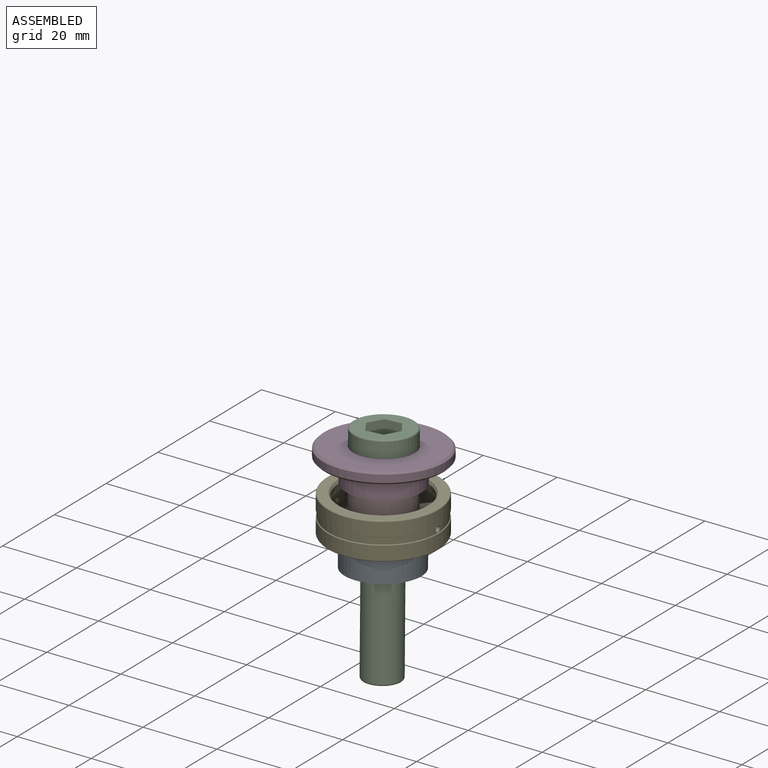
[diagram: assembled view]
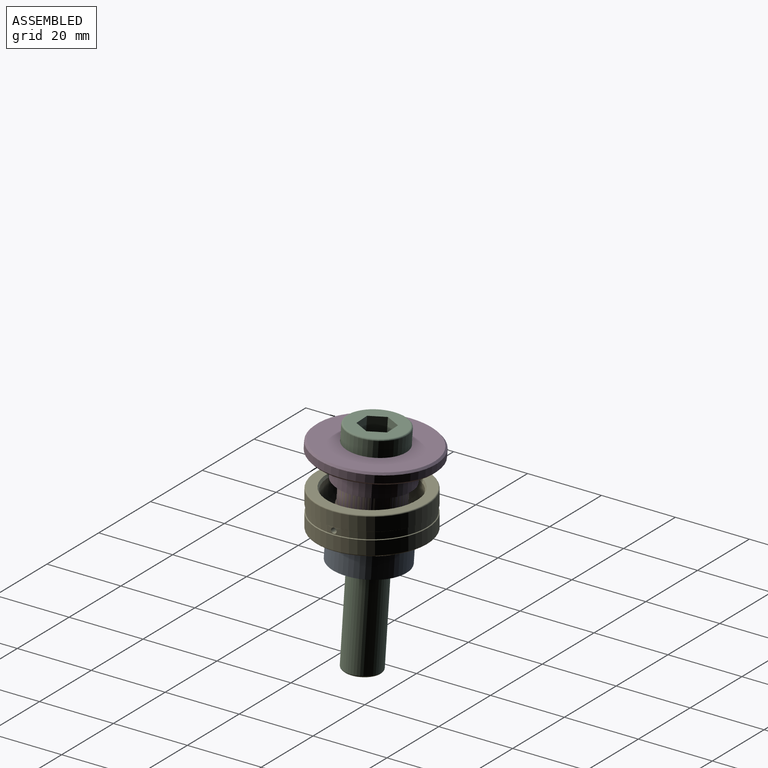
[diagram: assembled view, second angle]
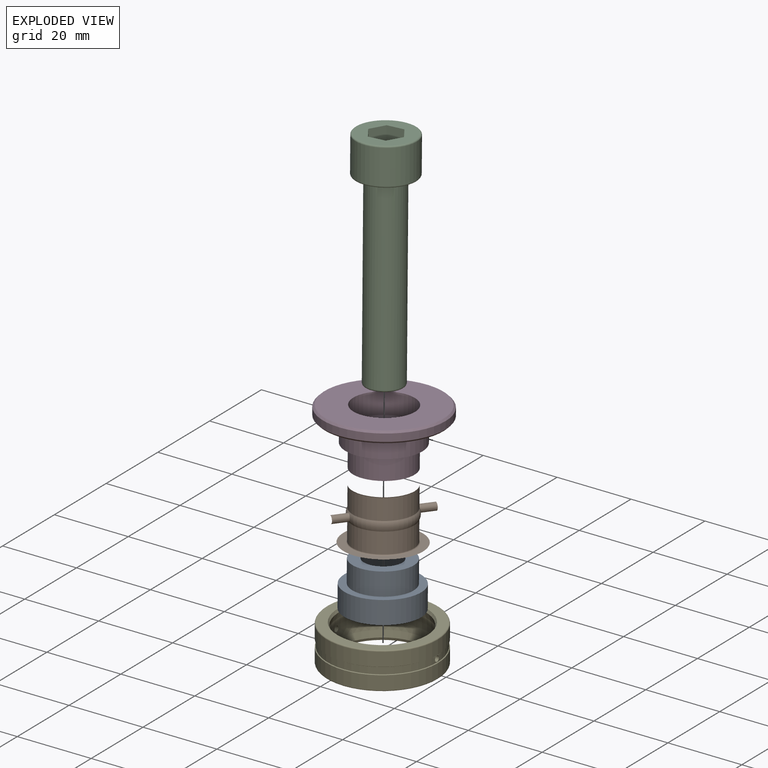
[diagram: exploded view]
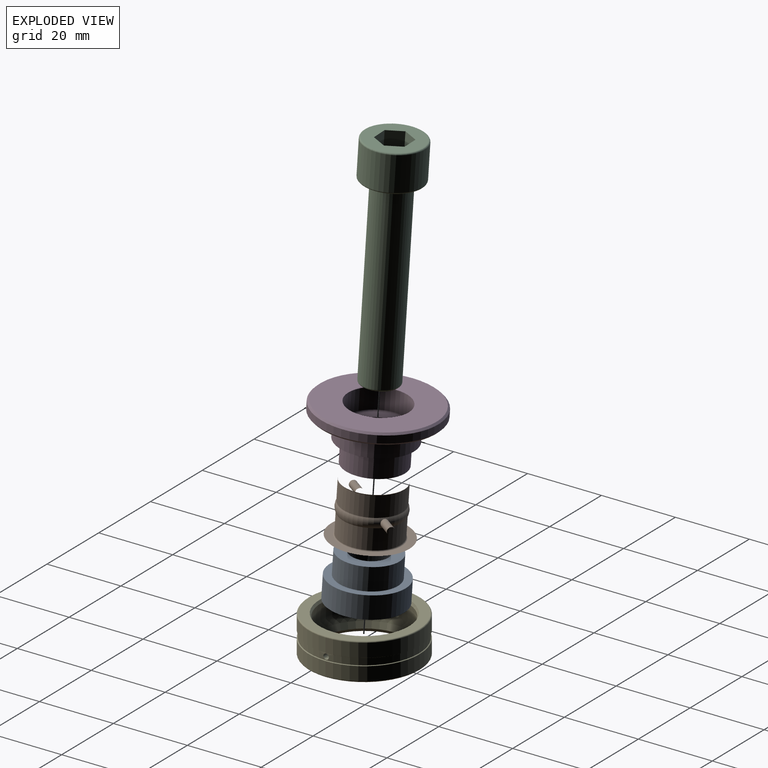
[diagram: exploded view, second angle]
ASSEMBLY  parts=5 mates=6
PART A: 6 faces, bbox 20x20x12 mm
  f0: cylinder r=10mm len=20mm, axis (0,0,-1), area 377mm2, adj f1,f5
  f1: plane 20x20mm, normal (0,0,-1), area 235.6mm2, adj f0,f2
  f2: cylinder r=5mm len=12mm, axis (0,0,-1), area 377mm2, adj f1,f3
  f3: plane 16x16mm, normal (0,0,1), area 122.5mm2, adj f2,f4
  f4: cylinder r=8mm len=16mm, axis (0,0,-1), area 301.6mm2, adj f3,f5
  f5: plane 20x20mm, normal (0,0,1), area 113.1mm2, adj f0,f4
PART B: 10 faces, bbox 25x25x25 mm
  f0: torus R=5.8mm, axis (0,0,1), area 130.4mm2, adj f1,f4,f6,f7
  f1: cylinder r=8mm len=16mm, axis (0,0,1), area 273.2mm2, adj f0,f2
  f2: torus R=8.3mm, axis (0,0,1), area 24mm2, adj f1,f9
  f3: torus R=8.3mm, axis (0,0,1), area 24mm2, adj f4,f8
  f4: cylinder r=8mm len=16mm, axis (0,0,1), area 273.2mm2, adj f0,f3
  f5: sphere r=12.5mm, area 1969.9mm2, adj f6,f7,f8,f9
  f6: cylinder r=1mm len=4.33mm, axis (1,0,0), area 26.7mm2, adj f0,f5
  f7: cylinder r=1mm len=4.33mm, axis (1,0,0), area 26.7mm2, adj f0,f5
  f8: plane 20.71x20.71mm, normal (0,0,1), area 120.5mm2, adj f3,f5
  f9: plane 20.71x20.71mm, normal (0,0,-1), area 120.5mm2, adj f2,f5
PART C: 16 faces, bbox 17.2x17.2x60 mm
  f0: plane 15.1x15.1mm, normal (0,0,1), area 123.7mm2, adj f5,f6,f7,f8,f9,f10,f12
  f1: cylinder r=7.95mm len=15.9mm, axis (0,0,1), area 459.6mm2, adj f12,f13
  f2: plane 15.1x15.1mm, normal (0,0,-1), area 84mm2, adj f13,f14
  f3: cylinder r=5mm len=49mm, axis (0,0,1), area 1539.4mm2, adj f14,f15
  f4: plane 9x9mm, normal (0,0,-1), area 63.6mm2, adj f15
  f5: plane 8x3.98mm, normal (0.86,0.51,0), area 37mm2, adj f0,f6,f10,f11
  f6: plane 8x4.62mm, normal (-0.01,1,0), area 37mm2, adj f0,f5,f7,f11
  f7: plane 8x4.02mm, normal (-0.87,0.49,0), area 37mm2, adj f0,f6,f8,f11
  f8: plane 8x3.98mm, normal (-0.86,-0.51,0), area 37mm2, adj f0,f7,f9,f11
  f9: plane 8x4.62mm, normal (0.01,-1,0), area 37mm2, adj f0,f8,f10,f11
  f10: plane 8x4.02mm, normal (0.87,-0.49,0), area 37mm2, adj f0,f5,f9,f11
  f11: plane 9.24x8.04mm, normal (0,0,1), area 55.4mm2, adj f5,f6,f7,f8,f9,f10
  f12: torus R=7.55mm, axis (0,0,1), area 30.8mm2, adj f0,f1
  f13: torus R=7.55mm, axis (0,0,-1), area 30.8mm2, adj f1,f2
  f14: torus R=5.5mm, axis (0,0,-1), area 25.6mm2, adj f2,f3
  f15: torus R=4.5mm, axis (0,0,-1), area 23.8mm2, adj f3,f4
PART D: 15 faces, bbox 31.8x31.8x15 mm
  f0: cylinder r=10mm len=20mm, axis (0,0,-1), area 345.6mm2, adj f1,f12
  f1: plane 20x20mm, normal (0,0,-1), area 87.2mm2, adj f0,f11
  f2: cylinder r=8mm len=16mm, axis (0,0,-1), area 276.5mm2, adj f3,f11
  f3: plane 16x16mm, normal (0,0,-1), area 122.5mm2, adj f2,f4
  f4: cylinder r=5mm len=10mm, axis (0,0,-1), area 282.7mm2, adj f3,f5
  f5: plane 15x15mm, normal (0,0,1), area 98.2mm2, adj f4,f6
  f6: torus R=7.5mm, axis (0,0,-1), area 38.6mm2, adj f5,f7
  f7: cylinder r=8mm len=16mm, axis (0,0,-1), area 276.5mm2, adj f6,f8
  f8: plane 30.85x30.85mm, normal (0,0,1), area 546.4mm2, adj f7,f13
  f9: cylinder r=15.92mm len=31.85mm, axis (0,0,-1), area 200.1mm2, adj f13,f14
  f10: plane 30.85x30.85mm, normal (0,0,-1), area 401.1mm2, adj f12,f14
  f11: cone r=8mm half-angle=45deg, axis (0,0,1), area 36.7mm2, adj f1,f2
  f12: cone r=10mm half-angle=45deg, axis (0,0,1), area 45.5mm2, adj f0,f10
  f13: cone r=15.92mm half-angle=45deg, axis (0,0,-1), area 69.6mm2, adj f8,f9
  f14: cone r=15.42mm half-angle=45deg, axis (0,0,1), area 69.6mm2, adj f9,f10
PART E: 14 faces, bbox 32.5x32.5x10 mm
  f0: cone r=11.93mm half-angle=25deg, axis (0,0,1), area 62mm2, adj f8,f13
  f1: torus R=14.7mm, axis (0,0,1), area 44.1mm2, adj f2,f13
  f2: cylinder r=15mm len=30mm, axis (0,0,1), area 346.7mm2, adj f1,f3
  f3: cone r=14.89mm half-angle=60deg, axis (0,0,1), area 22.7mm2, adj f2,f9
  f4: cone r=14.89mm half-angle=60deg, axis (0,0,-1), area 22.7mm2, adj f5,f9
  f5: cylinder r=15mm len=30mm, axis (0,0,1), area 346.7mm2, adj f4,f6
  f6: torus R=14.7mm, axis (0,0,1), area 44.1mm2, adj f5,f12
  f7: cone r=11.93mm half-angle=25deg, axis (0,0,-1), area 62mm2, adj f8,f12
  f8: revolved ~24.9x24.9mm, area 1325.7mm2, adj f0,f7,f10,f11
  f9: cylinder r=14.79mm len=29.58mm, axis (0,0,1), area 163.7mm2, adj f3,f4,f10,f11
  f10: cylinder r=0.75mm len=2.35mm, axis (1,0,0), area 11.1mm2, adj f8,f9
  f11: cylinder r=0.75mm len=2.35mm, axis (1,0,0), area 11.1mm2, adj f8,f9
  f12: plane 29.4x29.4mm, normal (0,0,-1), area 218.5mm2, adj f6,f7
  f13: plane 29.4x29.4mm, normal (0,0,1), area 218.5mm2, adj f0,f1
PLACE A rot(axis=(-0.01,0.02,1),171.7deg) t=(-2.58,-0.72,-10.57)mm
PLACE B rot(axis=(0,-0.03,-1),125.2deg) t=(-2.92,-0.08,2.41)mm
PLACE C rot(axis=(-0.03,-0.05,-1),56.7deg) t=(-3.45,0.93,22.88)mm
PLACE D rot(axis=(-0.02,-0.04,-1),71.1deg) t=(-2.95,-0.03,3.41)mm
PLACE E t=(-2.92,-0.08,2.41)mm fixed
MATE planar B.f0 <-> A.f0  axis (0.03,-0.05,-1) through (-2.74,-0.42,-4.58)mm
MATE revolute D.f0 <-> C.f1  axis (0.03,-0.05,-1) through (-3.18,0.42,12.4)mm
MATE cylindrical B.f4 <-> D.f0  axis (-0.03,0.05,1) through (-3.1,0.27,9.4)mm
MATE planar D.f0 <-> B.f4  axis (0.03,-0.05,-1) through (-3.1,0.27,9.4)mm
MATE cylindrical B.f0 <-> A.f0  axis (0.03,-0.05,-1) through (-2.74,-0.42,-4.58)mm
MATE ball B.f0 <-> E.f9  axis (-0.03,0.05,1) through (-2.92,-0.08,2.41)mm
